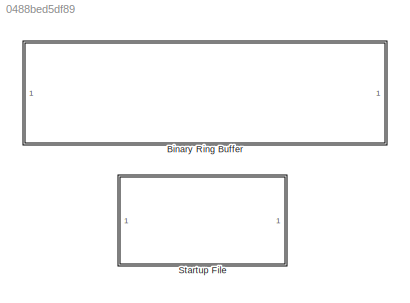
MODEL slx_0488bed5df89
KIND library
CONFIG AbsTol = auto
CONFIG EnableMultiTasking = off
CONFIG FixedStep = auto
CONFIG MaxStep = auto
CONFIG MinStep = auto
CONFIG RelTol = 1e-3
CONFIG SampleTimeConstraint = Unconstrained
CONFIG SolverName = VariableStepAuto
CONFIG StartTime = 0.0
CONFIG StopTime = 10.0
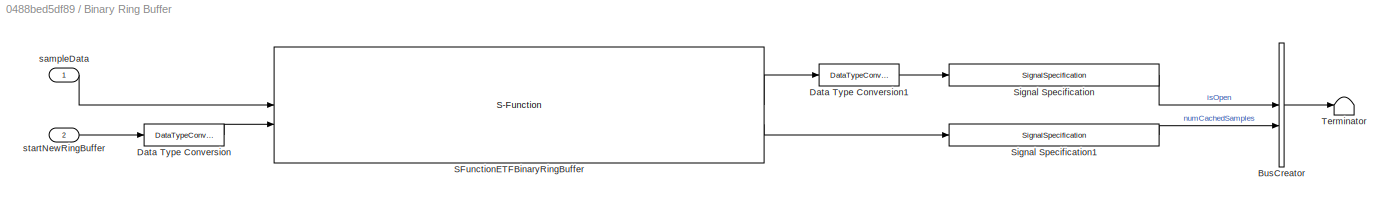
BLOCK [SubSystem] Binary Ring Buffer
BLOCK [BusCreator] Binary Ring Buffer/BusCreator
  DisplayOption = bar
  InheritFromInputs = on
  Inputs = 2
BLOCK [DataTypeConversion] Binary Ring Buffer/Data Type Conversion
  OutDataTypeStr = uint8
  RndMeth = Floor
  SaturateOnIntegerOverflow = off
BLOCK [DataTypeConversion] Binary Ring Buffer/Data Type Conversion1
  OutDataTypeStr = boolean
  RndMeth = Floor
  SaturateOnIntegerOverflow = off
BLOCK [S-Function] Binary Ring Buffer/SFunctionETFBinaryRingBuffer
  EnableBusSupport = off
  FunctionName = SFunctionETFBinaryRingBuffer
  Parameters = SParameter1, SParameter2, SParameter3, SParameter4, SParameter5, SParameter6
  SFcnIsStateOwnerBlock = off
  SFunctionDeploymentMode = off
BLOCK [SignalSpecification] Binary Ring Buffer/Signal Specification
  Dimensions = 1
  OutDataTypeStr = boolean
  SignalType = real
  VarSizeSig = No
BLOCK [SignalSpecification] Binary Ring Buffer/Signal Specification1
  Dimensions = 1
  OutDataTypeStr = uint32
  SignalType = real
  VarSizeSig = No
BLOCK [Terminator] Binary Ring Buffer/Terminator
BLOCK [Inport] Binary Ring Buffer/sampleData
  OutDataTypeStr = uint8
  PortDimensions = sampleSize
BLOCK [Inport] Binary Ring Buffer/startNewRingBuffer
  OutDataTypeStr = boolean
  Port = 2
  PortDimensions = 1
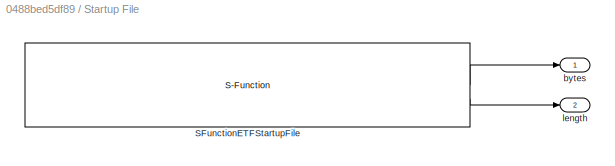
BLOCK [SubSystem] Startup File
BLOCK [S-Function] Startup File/SFunctionETFStartupFile
  EnableBusSupport = off
  FunctionName = SFunctionETFStartupFile
  Parameters = SParameter1, SParameter2, SParameter3, SampleTime
  SFcnIsStateOwnerBlock = off
  SFunctionDeploymentMode = off
BLOCK [Outport] Startup File/bytes
  OutDataTypeStr = uint8
  PortDimensions = maxNumBytes
BLOCK [Outport] Startup File/length
  OutDataTypeStr = uint32
  Port = 2
  PortDimensions = 1
LINE Startup File/SFunctionETFStartupFile:1 -> Startup File/bytes:1
LINE Startup File/SFunctionETFStartupFile:2 -> Startup File/length:1
